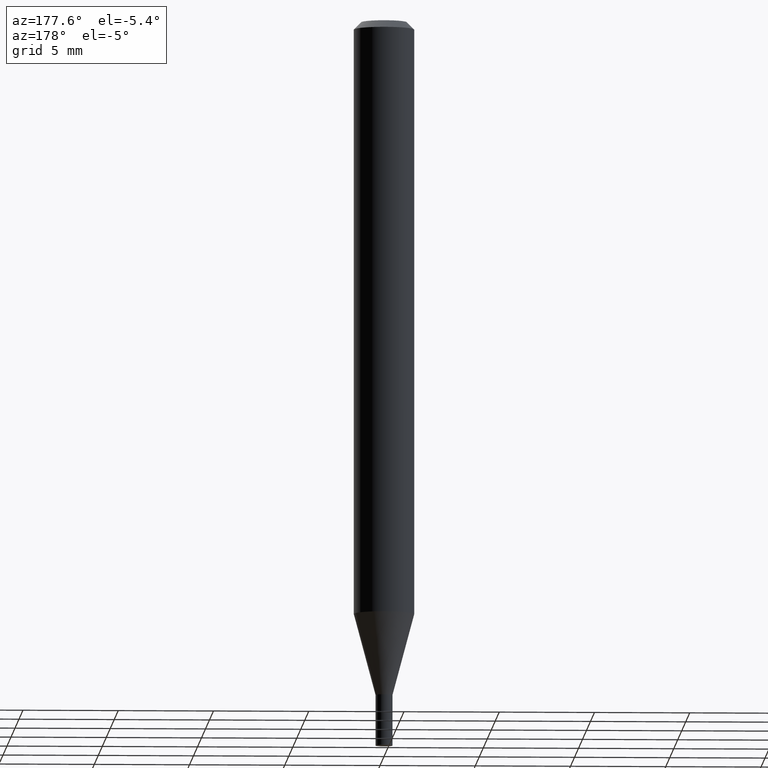
[diagram: clean part render]
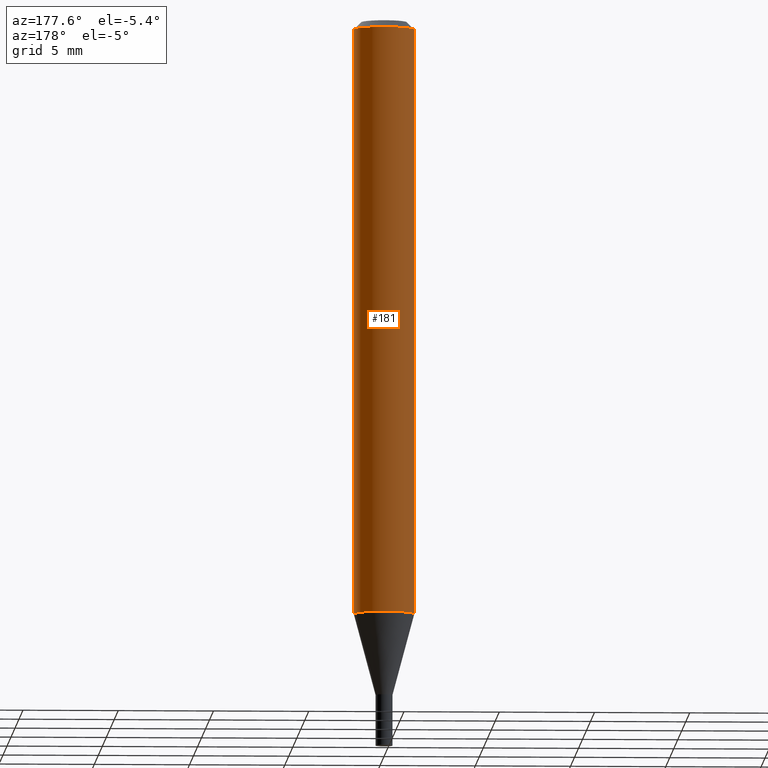
[diagram: same view with one face highlighted and labeled with its STEP entity id]
A machine part, auxiliary view. The second image highlights one B-rep face of the part: STEP entity #181.
In plain terms, the highlighted cylindrical surface (edge-blend (fillet) strip) has radius 1.5875 mm, axis along (-0, 0, 1).
Its self-contained STEP definition (entity closure, byte-faithful):
#1 = VECTOR ( 'NONE', #131, 39.37007874015748143 ) ;
#6 = EDGE_CURVE ( 'NONE', #242, #431, #196, .T. ) ;
#8 = VECTOR ( 'NONE', #105, 39.37007874015748143 ) ;
#11 = DIRECTION ( 'NONE',  ( -2.445468806185136597E-29, 3.491481338843145583E-15, 1.000000000000000000 ) ) ;
#22 = CARTESIAN_POINT ( 'NONE',  ( 3.668203209277705088E-31, -5.237222008264718399E-17, -0.01499999999999999944 ) ) ;
#29 = DIRECTION ( 'NONE',  ( 1.000000000000000000, -6.982962677686266711E-15, 0.000000000000000000 ) ) ;
#33 = AXIS2_PLACEMENT_3D ( 'NONE', #22, #200, #29 ) ;
#40 = AXIS2_PLACEMENT_3D ( 'NONE', #440, #342, #82 ) ;
#66 = CARTESIAN_POINT ( 'NONE',  ( 0.06250000000000000000, -4.364351673553916694E-16, 3.047610484872459871E-30 ) ) ;
#82 = DIRECTION ( 'NONE',  ( 1.000000000000000000, -6.982962677686262766E-15, 0.000000000000000000 ) ) ;
#105 = DIRECTION ( 'NONE',  ( -2.445468806185136877E-29, 3.491481338843145188E-15, 1.000000000000000000 ) ) ;
#131 = DIRECTION ( 'NONE',  ( -2.445468806185136877E-29, 3.491481338843145188E-15, 1.000000000000000000 ) ) ;
#136 = CIRCLE ( 'NONE', #33, 0.06250000000000000000 ) ;
#141 = FACE_OUTER_BOUND ( 'NONE', #151, .T. ) ;
#145 = ORIENTED_EDGE ( 'NONE', *, *, #457, .F. ) ;
#151 = EDGE_LOOP ( 'NONE', ( #449, #379, #145, #402 ) ) ;
#167 = CARTESIAN_POINT ( 'NONE',  ( 0.06250000000000000000, -4.888073874380388472E-16, -0.01499999999999999944 ) ) ;
#181 = ADVANCED_FACE ( 'NONE', ( #141 ), #186, .T. ) ;
#186 = CYLINDRICAL_SURFACE ( 'NONE', #323, 0.06250000000000000000 ) ;
#196 = LINE ( 'NONE', #66, #1 ) ;
#200 = DIRECTION ( 'NONE',  ( -2.445468806185136597E-29, 3.491481338843145583E-15, 1.000000000000000000 ) ) ;
#226 = CARTESIAN_POINT ( 'NONE',  ( -0.06250000000000000000, 4.440892098500626162E-16, -3.074334431409316114E-30 ) ) ;
#242 = VERTEX_POINT ( 'NONE', #311 ) ;
#264 = CARTESIAN_POINT ( 'NONE',  ( -0.06250000000000000000, -1.724221454653926105E-15, -0.01499999999999999944 ) ) ;
#302 = DIRECTION ( 'NONE',  ( 1.000000000000000000, -6.982962677686266711E-15, 4.876176775795935793E-29 ) ) ;
#311 = CARTESIAN_POINT ( 'NONE',  ( 0.06249999999999999306, -4.720684276280722821E-15, -1.227057713659399862 ) ) ;
#313 = VERTEX_POINT ( 'NONE', #264 ) ;
#323 = AXIS2_PLACEMENT_3D ( 'NONE', #333, #11, #302 ) ;
#327 = EDGE_CURVE ( 'NONE', #383, #313, #408, .T. ) ;
#333 = CARTESIAN_POINT ( 'NONE',  ( 0.000000000000000000, 0.000000000000000000, 0.000000000000000000 ) ) ;
#342 = DIRECTION ( 'NONE',  ( -2.445468806185136597E-29, 3.491481338843145583E-15, 1.000000000000000000 ) ) ;
#352 = EDGE_CURVE ( 'NONE', #242, #383, #365, .T. ) ;
#363 = CARTESIAN_POINT ( 'NONE',  ( -0.06249999999999999306, -3.840159899075268536E-15, -1.227057713659399862 ) ) ;
#365 = CIRCLE ( 'NONE', #40, 0.06250000000000000000 ) ;
#379 = ORIENTED_EDGE ( 'NONE', *, *, #327, .T. ) ;
#383 = VERTEX_POINT ( 'NONE', #363 ) ;
#402 = ORIENTED_EDGE ( 'NONE', *, *, #6, .F. ) ;
#408 = LINE ( 'NONE', #226, #8 ) ;
#431 = VERTEX_POINT ( 'NONE', #167 ) ;
#440 = CARTESIAN_POINT ( 'NONE',  ( 3.000731362142915866E-29, -4.284249108925330363E-15, -1.227057713659399862 ) ) ;
#449 = ORIENTED_EDGE ( 'NONE', *, *, #352, .T. ) ;
#457 = EDGE_CURVE ( 'NONE', #431, #313, #136, .T. ) ;